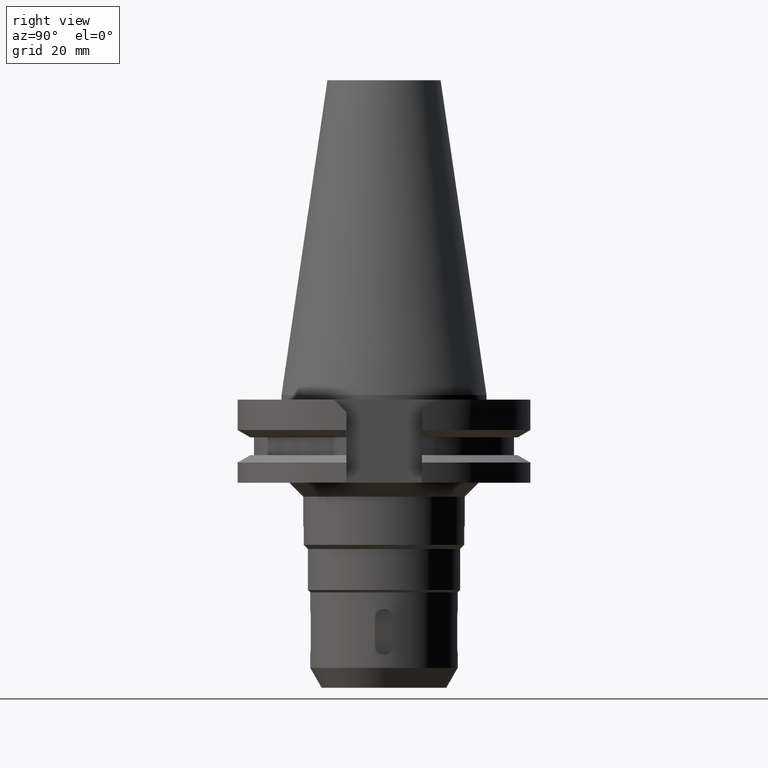
[diagram: clean part render]
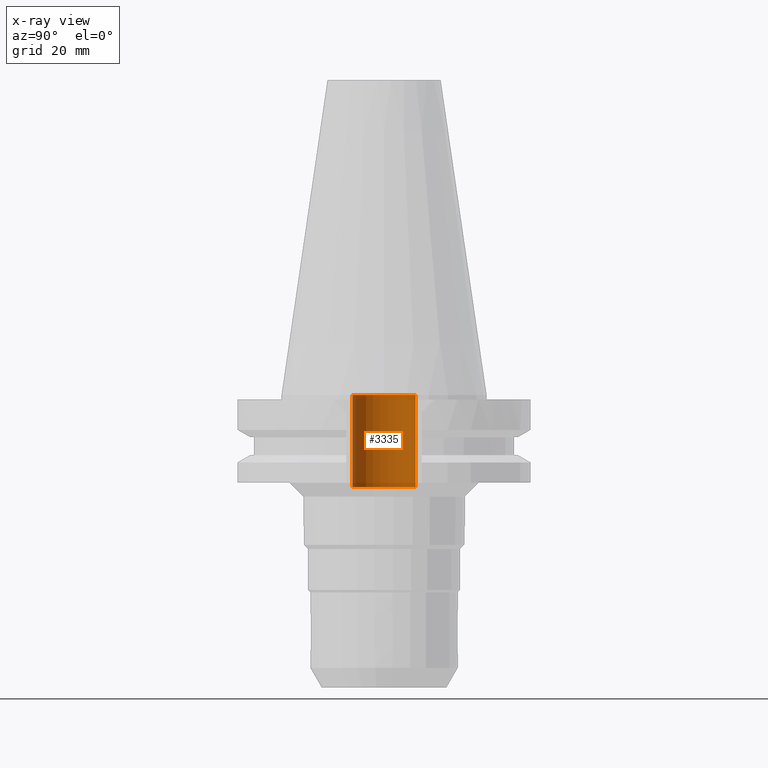
[diagram: x-ray — body ghosted, one internal face saturated and labeled with its STEP entity id]
A machine part, right view, then the same camera in x-ray: the body is ghosted and one INTERNAL B-rep face — a face not visible from any outside direction — is saturated and labeled: STEP entity #3335.
In plain terms, the highlighted cylindrical surface (edge-blend (fillet) strip) has radius 6.85 mm, axis along (0, 0, -1).
Its self-contained STEP definition (entity closure, byte-faithful):
#1448=CARTESIAN_POINT('',(0.E0,2.141141847459E-14,-2.E1));
#1449=DIRECTION('',(0.E0,0.E0,-1.E0));
#1450=DIRECTION('',(0.E0,-1.E0,0.E0));
#1451=AXIS2_PLACEMENT_3D('',#1448,#1449,#1450);
#1480=DIRECTION('',(0.E0,0.E0,1.E0));
#1481=VECTOR('',#1480,2.E1);
#1482=CARTESIAN_POINT('',(0.E0,-6.85E0,-2.E1));
#1483=LINE('',#1482,#1481);
#1487=CARTESIAN_POINT('',(0.E0,2.141141847459E-14,-7.105427357601E-14));
#1488=DIRECTION('',(0.E0,0.E0,-1.E0));
#1489=DIRECTION('',(0.E0,-1.E0,0.E0));
#1490=AXIS2_PLACEMENT_3D('',#1487,#1488,#1489);
#1495=DIRECTION('',(0.E0,0.E0,1.E0));
#1496=VECTOR('',#1495,2.E1);
#1497=CARTESIAN_POINT('',(0.E0,6.85E0,-2.E1));
#1498=LINE('',#1497,#1496);
#1938=CARTESIAN_POINT('',(0.E0,6.85E0,-7.105427357601E-14));
#1939=VERTEX_POINT('',#1938);
#1940=CARTESIAN_POINT('',(0.E0,-6.85E0,-7.105427357601E-14));
#1941=VERTEX_POINT('',#1940);
#1942=CARTESIAN_POINT('',(0.E0,6.85E0,-2.E1));
#1943=VERTEX_POINT('',#1942);
#1944=CARTESIAN_POINT('',(0.E0,-6.85E0,-2.E1));
#1945=VERTEX_POINT('',#1944);
#3321=CARTESIAN_POINT('',(0.E0,2.141141847459E-14,7.48375E1));
#3322=DIRECTION('',(0.E0,0.E0,-1.E0));
#3323=DIRECTION('',(0.E0,-1.E0,0.E0));
#3324=AXIS2_PLACEMENT_3D('',#3321,#3322,#3323);
#3325=CYLINDRICAL_SURFACE('',#3324,6.85E0);
#3327=ORIENTED_EDGE('',*,*,#3326,.F.);
#3328=ORIENTED_EDGE('',*,*,#3310,.F.);
#3330=ORIENTED_EDGE('',*,*,#3329,.T.);
#3332=ORIENTED_EDGE('',*,*,#3331,.T.);
#3333=EDGE_LOOP('',(#3327,#3328,#3330,#3332));
#3334=FACE_OUTER_BOUND('',#3333,.F.);
#1452=CIRCLE('',#1451,6.85E0);
#1491=CIRCLE('',#1490,6.85E0);
#3310=EDGE_CURVE('',#1945,#1943,#1452,.T.);
#3326=EDGE_CURVE('',#1943,#1939,#1498,.T.);
#3329=EDGE_CURVE('',#1945,#1941,#1483,.T.);
#3331=EDGE_CURVE('',#1941,#1939,#1491,.T.);
#3335=ADVANCED_FACE('',(#3334),#3325,.F.);